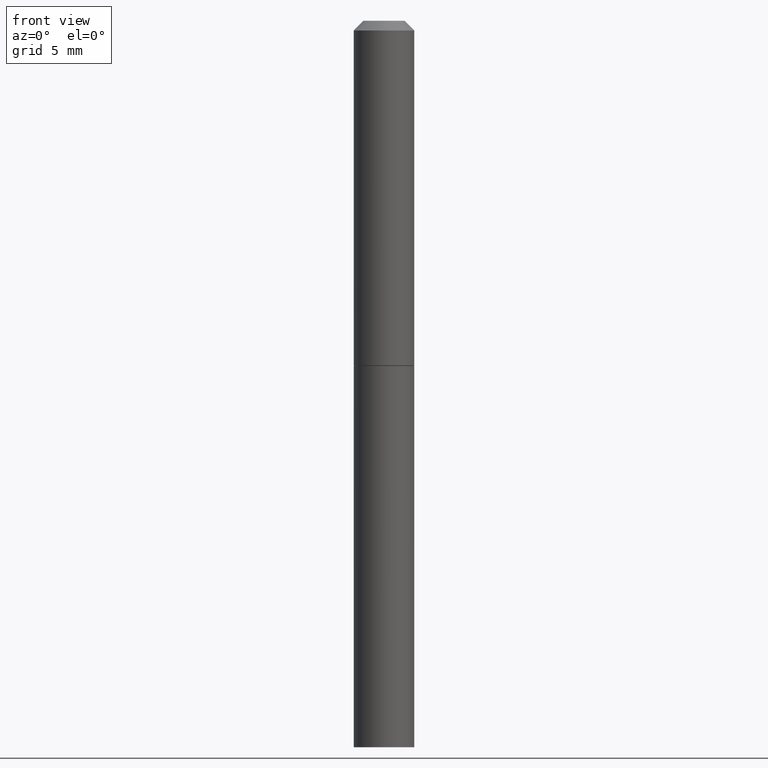
[diagram: clean part render]
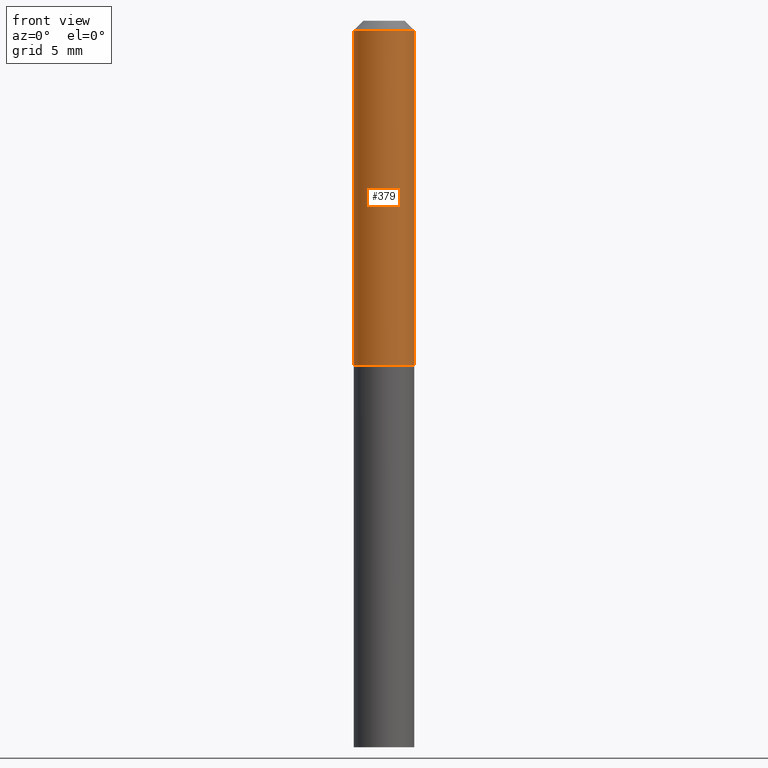
[diagram: same view with one face highlighted and labeled with its STEP entity id]
A machine part, front view. The second image highlights one B-rep face of the part: STEP entity #379.
In plain terms, the highlighted cylindrical surface (edge-blend (fillet) strip) has radius 1.5875 mm, axis along (-0, 0, 1).
Its self-contained STEP definition (entity closure, byte-faithful):
#15 = DIRECTION ( 'NONE',  ( -2.445468806185136877E-29, 3.491481338843145188E-15, 1.000000000000000000 ) ) ;
#17 = EDGE_CURVE ( 'NONE', #305, #175, #228, .T. ) ;
#24 = ORIENTED_EDGE ( 'NONE', *, *, #17, .F. ) ;
#25 = AXIS2_PLACEMENT_3D ( 'NONE', #91, #88, #54 ) ;
#27 = DIRECTION ( 'NONE',  ( 1.000000000000000000, -6.982962677686267499E-15, 4.876176775795936353E-29 ) ) ;
#28 = CARTESIAN_POINT ( 'NONE',  ( -0.06249999999999997918, 4.440892098500624683E-16, -3.074334431409315413E-30 ) ) ;
#54 = DIRECTION ( 'NONE',  ( 1.000000000000000000, -6.982962677686266711E-15, 0.000000000000000000 ) ) ;
#61 = DIRECTION ( 'NONE',  ( -2.445468806185136597E-29, 3.491481338843145583E-15, 1.000000000000000000 ) ) ;
#88 = DIRECTION ( 'NONE',  ( -2.445468806185136597E-29, 3.491481338843145583E-15, 1.000000000000000000 ) ) ;
#91 = CARTESIAN_POINT ( 'NONE',  ( 4.890937612370294178E-31, -6.982962677686321191E-17, -0.02000000000000008715 ) ) ;
#94 = EDGE_LOOP ( 'NONE', ( #273, #355, #257, #24 ) ) ;
#103 = EDGE_CURVE ( 'NONE', #389, #175, #369, .T. ) ;
#139 = CIRCLE ( 'NONE', #192, 0.06250000000000001388 ) ;
#145 = CARTESIAN_POINT ( 'NONE',  ( 0.000000000000000000, 0.000000000000000000, 0.000000000000000000 ) ) ;
#151 = DIRECTION ( 'NONE',  ( -2.445468806185136877E-29, 3.491481338843145188E-15, 1.000000000000000000 ) ) ;
#164 = CARTESIAN_POINT ( 'NONE',  ( 0.06249999999999997918, -4.364351673553915708E-16, 3.047610484872459170E-30 ) ) ;
#169 = CARTESIAN_POINT ( 'NONE',  ( 1.740195602481343455E-29, -2.484538120720782881E-15, -0.7116000000000001213 ) ) ;
#175 = VERTEX_POINT ( 'NONE', #281 ) ;
#177 = CARTESIAN_POINT ( 'NONE',  ( -0.06250000000000001388, -8.330946638987597832E-16, -0.7116000000000001213 ) ) ;
#192 = AXIS2_PLACEMENT_3D ( 'NONE', #169, #252, #253 ) ;
#193 = EDGE_CURVE ( 'NONE', #325, #389, #139, .T. ) ;
#205 = FACE_OUTER_BOUND ( 'NONE', #94, .T. ) ;
#228 = CIRCLE ( 'NONE', #25, 0.06249999999999995143 ) ;
#230 = VECTOR ( 'NONE', #151, 39.37007874015748143 ) ;
#252 = DIRECTION ( 'NONE',  ( -2.445468806185136597E-29, 3.491481338843145583E-15, 1.000000000000000000 ) ) ;
#253 = DIRECTION ( 'NONE',  ( 1.000000000000000000, -6.982962677686269077E-15, 0.000000000000000000 ) ) ;
#255 = AXIS2_PLACEMENT_3D ( 'NONE', #145, #61, #27 ) ;
#257 = ORIENTED_EDGE ( 'NONE', *, *, #103, .T. ) ;
#262 = CYLINDRICAL_SURFACE ( 'NONE', #255, 0.06249999999999997918 ) ;
#273 = ORIENTED_EDGE ( 'NONE', *, *, #290, .F. ) ;
#281 = CARTESIAN_POINT ( 'NONE',  ( 0.06249999999999995143, -4.986107516375836264E-16, -0.02000000000000008715 ) ) ;
#290 = EDGE_CURVE ( 'NONE', #325, #305, #321, .T. ) ;
#292 = VECTOR ( 'NONE', #15, 39.37007874015748143 ) ;
#305 = VERTEX_POINT ( 'NONE', #320 ) ;
#320 = CARTESIAN_POINT ( 'NONE',  ( -0.06249999999999995143, 3.666055405785281247E-16, -0.02000000000000008715 ) ) ;
#321 = LINE ( 'NONE', #28, #230 ) ;
#325 = VERTEX_POINT ( 'NONE', #177 ) ;
#355 = ORIENTED_EDGE ( 'NONE', *, *, #193, .T. ) ;
#369 = LINE ( 'NONE', #164, #292 ) ;
#379 = ADVANCED_FACE ( 'NONE', ( #205 ), #262, .T. ) ;
#385 = CARTESIAN_POINT ( 'NONE',  ( 0.06250000000000001388, -2.920973288076174551E-15, -0.7116000000000001213 ) ) ;
#389 = VERTEX_POINT ( 'NONE', #385 ) ;